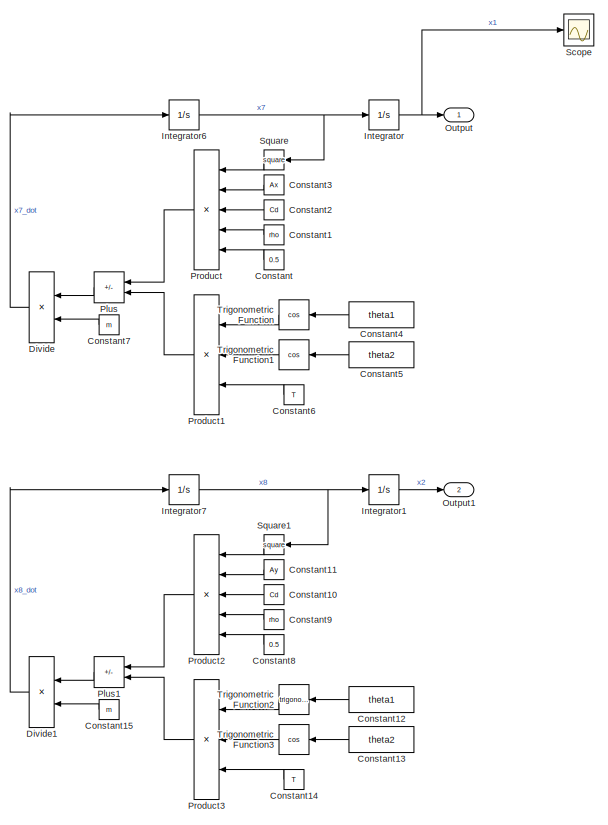
[diagram: root canvas - part 1/2, full width, top band]
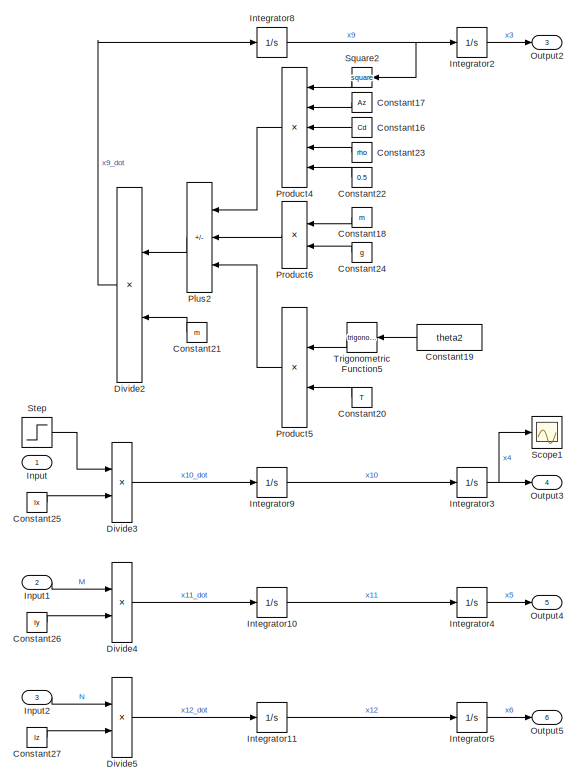
[diagram: root canvas - part 2/2, full width, bottom band]
MODEL slx_103ce5a79d5f
KIND model
CONFIG AbsTol = auto
CONFIG EnableMultiTasking = off
CONFIG FixedStep = auto
CONFIG MaxStep = auto
CONFIG MinStep = auto
CONFIG RelTol = 1e-3
CONFIG SampleTimeConstraint = Unconstrained
CONFIG SolverName = VariableStepAuto
CONFIG StartTime = 0.0
CONFIG StopTime = 10.0
BLOCK [Constant] Constant
  Value = 0.5
BLOCK [Constant] Constant1
  Value = rho
BLOCK [Constant] Constant10
  Value = Cd
BLOCK [Constant] Constant11
  Value = Ay
BLOCK [Constant] Constant12
  Value = theta1
BLOCK [Constant] Constant13
  Value = theta2
BLOCK [Constant] Constant14
  Value = T
BLOCK [Constant] Constant15
  Value = m
BLOCK [Constant] Constant16
  Value = Cd
BLOCK [Constant] Constant17
  Value = Az
BLOCK [Constant] Constant18
  Value = m
BLOCK [Constant] Constant19
  Value = theta2
BLOCK [Constant] Constant2
  Value = Cd
BLOCK [Constant] Constant20
  Value = T
BLOCK [Constant] Constant21
  Value = m
BLOCK [Constant] Constant22
  Value = 0.5
BLOCK [Constant] Constant23
  Value = rho
BLOCK [Constant] Constant24
  Value = g
BLOCK [Constant] Constant25
  Value = Ix
BLOCK [Constant] Constant26
  Value = Iy
BLOCK [Constant] Constant27
  Value = Iz
BLOCK [Constant] Constant3
  Value = Ax
BLOCK [Constant] Constant4
  Value = theta1
BLOCK [Constant] Constant5
  Value = theta2
BLOCK [Constant] Constant6
  Value = T
BLOCK [Constant] Constant7
  Value = m
BLOCK [Constant] Constant8
  Value = 0.5
BLOCK [Constant] Constant9
  Value = rho
BLOCK [Product] Divide
  Inputs = */
BLOCK [Product] Divide1
  Inputs = */
BLOCK [Product] Divide2
  Inputs = */
BLOCK [Product] Divide3
  Inputs = */
BLOCK [Product] Divide4
  Inputs = */
BLOCK [Product] Divide5
  Inputs = */
BLOCK [Inport] Input
BLOCK [Inport] Input1
  Port = 2
BLOCK [Inport] Input2
  Port = 3
BLOCK [Integrator] Integrator
BLOCK [Integrator] Integrator1
BLOCK [Integrator] Integrator10
BLOCK [Integrator] Integrator11
BLOCK [Integrator] Integrator2
BLOCK [Integrator] Integrator3
BLOCK [Integrator] Integrator4
BLOCK [Integrator] Integrator5
BLOCK [Integrator] Integrator6
BLOCK [Integrator] Integrator7
BLOCK [Integrator] Integrator8
BLOCK [Integrator] Integrator9
BLOCK [Outport] Output
BLOCK [Outport] Output1
  Port = 2
BLOCK [Outport] Output2
  Port = 3
BLOCK [Outport] Output3
  Port = 4
BLOCK [Outport] Output4
  Port = 5
BLOCK [Outport] Output5
  Port = 6
BLOCK [Sum] Plus
  IconShape = rectangular
  Inputs = -+
BLOCK [Sum] Plus1
  IconShape = rectangular
  Inputs = -+
BLOCK [Sum] Plus2
  IconShape = rectangular
  Inputs = --+
BLOCK [Product] Product
  Inputs = 5
BLOCK [Product] Product1
  Inputs = 3
BLOCK [Product] Product2
  Inputs = 5
BLOCK [Product] Product3
  Inputs = 3
BLOCK [Product] Product4
  Inputs = 5
BLOCK [Product] Product5
BLOCK [Product] Product6
BLOCK [Scope] Scope
  Floating = off
  NumInputPorts = 1
  ScopeSpecificationString = Simulink.scopes.TimeScopeBlockCfg('CurrentConfiguration', extmgr.ConfigurationSet(extmgr.Configuration('Core','General UI',true),extmgr.Configuration('Core','Source UI',true),extmgr.Configuration('Sources','WiredSimulink',true),extmgr.Configuration('Visuals','Time Domain',true,'SerializedDisplays',{struct('MinYLimReal','-24.50751','MaxYLimReal','220.56757','YLabelReal','','MinYLimMag','0.00000','M...<+1421ch>
BLOCK [Scope] Scope1
  Floating = off
  NumInputPorts = 1
  ScopeSpecificationString = Simulink.scopes.TimeScopeBlockCfg('CurrentConfiguration', extmgr.ConfigurationSet(extmgr.Configuration('Core','General UI',true),extmgr.Configuration('Core','Source UI',true),extmgr.Configuration('Sources','WiredSimulink',true,'DataLoggingVariableName','ScopeData1'),extmgr.Configuration('Visuals','Time Domain',true),extmgr.Configuration('Tools','Plot Navigation',true),extmgr.Configuration('Tools',...<+40ch>
BLOCK [Math] Square
  Operator = square
BLOCK [Math] Square1
  Operator = square
BLOCK [Math] Square2
  Operator = square
BLOCK [Step] Step
  SampleTime = 0
BLOCK [Trigonometry] Trigonometric Function
  Operator = cos
BLOCK [Trigonometry] Trigonometric Function1
  Operator = cos
BLOCK [Trigonometry] Trigonometric Function2
BLOCK [Trigonometry] Trigonometric Function3
  Operator = cos
BLOCK [Trigonometry] Trigonometric Function5
LINE Constant10:1 -> Product2:3
LINE Constant11:1 -> Product2:2
LINE Constant12:1 -> Trigonometric Function2:1
LINE Constant13:1 -> Trigonometric Function3:1
LINE Constant14:1 -> Product3:3
LINE Constant15:1 -> Divide1:2
LINE Constant16:1 -> Product4:3
LINE Constant17:1 -> Product4:2
LINE Constant18:1 -> Product6:1
LINE Constant19:1 -> Trigonometric Function5:1
LINE Constant1:1 -> Product:4
LINE Constant20:1 -> Product5:2
LINE Constant21:1 -> Divide2:2
LINE Constant22:1 -> Product4:5
LINE Constant23:1 -> Product4:4
LINE Constant24:1 -> Product6:2
LINE Constant25:1 -> Divide3:2
LINE Constant26:1 -> Divide4:2
LINE Constant27:1 -> Divide5:2
LINE Constant2:1 -> Product:3
LINE Constant3:1 -> Product:2
LINE Constant4:1 -> Trigonometric Function:1
LINE Constant5:1 -> Trigonometric Function1:1
LINE Constant6:1 -> Product1:3
LINE Constant7:1 -> Divide:2
LINE Constant8:1 -> Product2:5
LINE Constant9:1 -> Product2:4
LINE Constant:1 -> Product:5
LINE Divide1:1 -> Integrator7:1
LINE Divide2:1 -> Integrator8:1
LINE Divide3:1 -> Integrator9:1
LINE Divide4:1 -> Integrator10:1
LINE Divide5:1 -> Integrator11:1
LINE Divide:1 -> Integrator6:1
LINE Input1:1 -> Divide4:1
LINE Input2:1 -> Divide5:1
LINE Integrator10:1 -> Integrator4:1
LINE Integrator11:1 -> Integrator5:1
LINE Integrator1:1 -> Output1:1
LINE Integrator2:1 -> Output2:1
NET Integrator3:1 -> Output3:1, Scope1:1
LINE Integrator4:1 -> Output4:1
LINE Integrator5:1 -> Output5:1
NET Integrator6:1 -> Integrator:1, Square:1
NET Integrator7:1 -> Integrator1:1, Square1:1
NET Integrator8:1 -> Integrator2:1, Square2:1
LINE Integrator9:1 -> Integrator3:1
NET Integrator:1 -> Output:1, Scope:1
LINE Plus1:1 -> Divide1:1
LINE Plus2:1 -> Divide2:1
LINE Plus:1 -> Divide:1
LINE Product1:1 -> Plus:2
LINE Product2:1 -> Plus1:1
LINE Product3:1 -> Plus1:2
LINE Product4:1 -> Plus2:1
LINE Product5:1 -> Plus2:3
LINE Product6:1 -> Plus2:2
LINE Product:1 -> Plus:1
LINE Square1:1 -> Product2:1
LINE Square2:1 -> Product4:1
LINE Square:1 -> Product:1
LINE Step:1 -> Divide3:1
LINE Trigonometric Function1:1 -> Product1:2
LINE Trigonometric Function2:1 -> Product3:1
LINE Trigonometric Function3:1 -> Product3:2
LINE Trigonometric Function5:1 -> Product5:1
LINE Trigonometric Function:1 -> Product1:1
note: NET lines group one-source signal fan-out (src -> all destinations, sorted); 1:1 wires keep LINE
